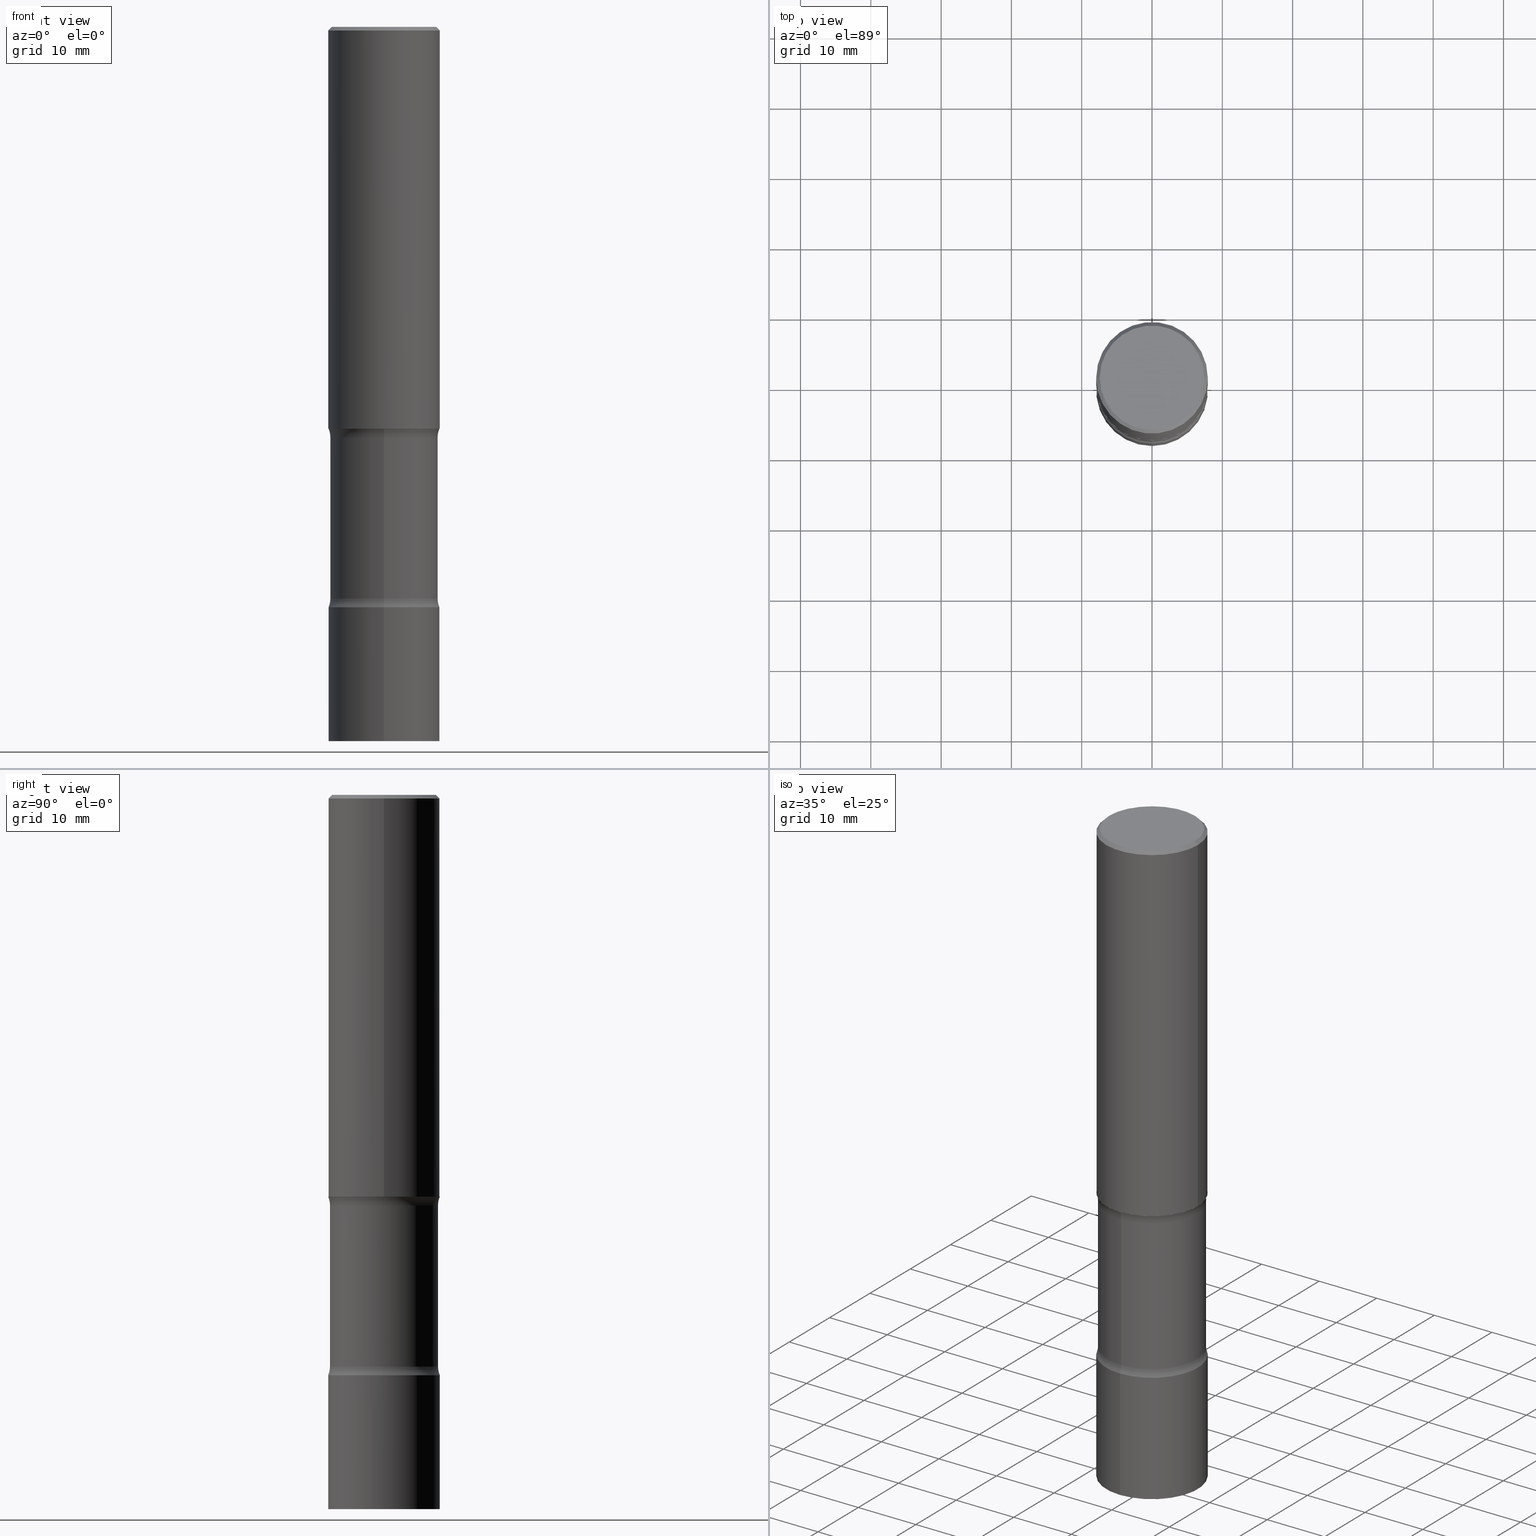
[diagram: canonical four-view strip — front | top / right | iso, engineering-drawing reading convention]
A machine part, canonical four-view strip (front | top / right | iso — engineering-drawing reading convention). The complete STEP part file that produces these views, byte-faithful:
ISO-10303-21;
HEADER;
FILE_DESCRIPTION (( 'STEP AP203' ),
    '1' );
FILE_NAME ('32737.STEP',
    '2024-03-11T13:18:27',
    ( '' ),
    ( '' ),
    'SwSTEP 2.0',
    'SolidWorks 2023',
    '' );
FILE_SCHEMA (( 'CONFIG_CONTROL_DESIGN' ));
ENDSEC;

DATA;
#1 = FACE_OUTER_BOUND ( 'NONE', #186, .T. ) ;
#2 = VERTEX_POINT ( 'NONE', #223 ) ;
#3 = PERSON_AND_ORGANIZATION ( #507, #506 ) ;
#4 = EDGE_CURVE ( 'NONE', #238, #206, #123, .T. ) ;
#5 = CIRCLE ( 'NONE', #179, 0.3125000000000001665 ) ;
#6 = ORIENTED_EDGE ( 'NONE', *, *, #126, .T. ) ;
#7 = EDGE_CURVE ( 'NONE', #459, #174, #246, .T. ) ;
#8 = AXIS2_PLACEMENT_3D ( 'NONE', #351, #243, #288 ) ;
#9 = CARTESIAN_POINT ( 'NONE',  ( -0.3124999999999998890, 2.220446049250312292E-15, -1.537167215704657391E-29 ) ) ;
#10 = FACE_OUTER_BOUND ( 'NONE', #82, .T. ) ;
#11 = DIRECTION ( 'NONE',  ( -6.982962677686265133E-15, -1.000000000000000000, 3.496765431890254947E-15 ) ) ;
#12 = DIRECTION ( 'NONE',  ( 6.982962677686265133E-15, 1.000000000000000000, -3.496765431890258892E-15 ) ) ;
#13 = ORIENTED_EDGE ( 'NONE', *, *, #81, .T. ) ;
#14 = EDGE_LOOP ( 'NONE', ( #345, #315, #500, #342 ) ) ;
#15 = DIRECTION ( 'NONE',  ( 6.860497997771532351E-15, 1.000000000000000000, 0.000000000000000000 ) ) ;
#16 = DIRECTION ( 'NONE',  ( 2.194409616694609199E-29, -3.851012387595239372E-15, -1.000000000000000000 ) ) ;
#17 = DIRECTION ( 'NONE',  ( -2.445033351893169322E-29, 3.492104934173762061E-15, 1.000000000000000000 ) ) ;
#18 = MANIFOLD_SOLID_BREP ( 'Body-Move/Copy2[2]', #350 ) ;
#19 = CC_DESIGN_PERSON_AND_ORGANIZATION_ASSIGNMENT ( #469, #439, ( #482 ) ) ;
#20 = AXIS2_PLACEMENT_3D ( 'NONE', #192, #371, #265 ) ;
#21 = MANIFOLD_SOLID_BREP ( 'Body-Move/Copy2[1]', #224 ) ;
#22 = MANIFOLD_SOLID_BREP ( 'Body-Move/Copy2[4]', #90 ) ;
#23 = EDGE_CURVE ( 'NONE', #105, #443, #83, .T. ) ;
#24 = DIRECTION ( 'NONE',  ( -0.7071067811865472397, 2.468850131082253905E-15, -0.7071067811865477948 ) ) ;
#25 = CARTESIAN_POINT ( 'NONE',  ( -2.182175836776959136E-15, -0.3125000000000001665, 1.091282791929301285E-15 ) ) ;
#26 = EDGE_CURVE ( 'NONE', #287, #233, #5, .T. ) ;
#27 = DIRECTION ( 'NONE',  ( 1.000000000000000000, -6.982962677686265133E-15, 4.876067333457694521E-29 ) ) ;
#28 = AXIS2_PLACEMENT_3D ( 'NONE', #257, #300, #454 ) ;
#29 = DIRECTION ( 'NONE',  ( -2.445468806185136597E-29, 3.491481338843145583E-15, 1.000000000000000000 ) ) ;
#30 = AXIS2_PLACEMENT_3D ( 'NONE', #229, #372, #348 ) ;
#31 = CARTESIAN_POINT ( 'NONE',  ( 9.780133407572677289E-29, -1.396841973669504667E-14, -4.000000000000000000 ) ) ;
#32 = CYLINDRICAL_SURFACE ( 'NONE', #435, 0.3124999999999998890 ) ;
#33 = ADVANCED_FACE ( 'NONE', ( #491 ), #480, .F. ) ;
#34 = FACE_OUTER_BOUND ( 'NONE', #216, .T. ) ;
#35 = DATE_TIME_ROLE ( 'classification_date' ) ;
#36 = ORIENTED_EDGE ( 'NONE', *, *, #286, .F. ) ;
#37 = EDGE_CURVE ( 'NONE', #349, #354, #172, .T. ) ;
#38 = AXIS2_PLACEMENT_3D ( 'NONE', #255, #76, #498 ) ;
#39 = VECTOR ( 'NONE', #299, 39.37007874015748143 ) ;
#40 = SECURITY_CLASSIFICATION ( '', '', #344 ) ;
#41 = DIRECTION ( 'NONE',  ( 2.445468806185136597E-29, -3.491481338843145583E-15, -1.000000000000000000 ) ) ;
#42 = ORIENTED_EDGE ( 'NONE', *, *, #126, .F. ) ;
#43 = COORDINATED_UNIVERSAL_TIME_OFFSET ( 5, 0, .BEHIND. ) ;
#44 = ORIENTED_EDGE ( 'NONE', *, *, #37, .F. ) ;
#45 = APPROVAL_DATE_TIME ( #424, #432 ) ;
#46 = ORIENTED_EDGE ( 'NONE', *, *, #487, .F. ) ;
#47 = FACE_OUTER_BOUND ( 'NONE', #309, .T. ) ;
#48 = VERTEX_POINT ( 'NONE', #414 ) ;
#49 = PERSON_AND_ORGANIZATION ( #507, #506 ) ;
#50 = EDGE_CURVE ( 'NONE', #48, #388, #305, .T. ) ;
#51 = VECTOR ( 'NONE', #332, 39.37007874015748143 ) ;
#52 = LOCAL_TIME ( 9, 18, 27.00000000000000000, #463 ) ;
#53 = CARTESIAN_POINT ( 'NONE',  ( 2.112346210000151452E-15, 0.3024999999999919420, -2.298989794855665014 ) ) ;
#54 = ORIENTED_EDGE ( 'NONE', *, *, #453, .T. ) ;
#55 = ORIENTED_EDGE ( 'NONE', *, *, #81, .F. ) ;
#56 = APPROVAL_STATUS ( 'not_yet_approved' ) ;
#57 = EDGE_LOOP ( 'NONE', ( #339, #91 ) ) ;
#58 = DIRECTION ( 'NONE',  ( 6.982962677686265922E-15, 1.000000000000000000, -3.492104934173762061E-15 ) ) ;
#59 = CARTESIAN_POINT ( 'NONE',  ( 9.780133407572677289E-29, -1.396841973669504667E-14, -4.000000000000000000 ) ) ;
#60 = LOCAL_TIME ( 9, 18, 27.00000000000000000, #43 ) ;
#61 = ORIENTED_EDGE ( 'NONE', *, *, #245, .F. ) ;
#62 = EDGE_CURVE ( 'NONE', #354, #349, #446, .T. ) ;
#63 = DIRECTION ( 'NONE',  ( 2.194409616694609199E-29, -3.851012387595239372E-15, -1.000000000000000000 ) ) ;
#64 = FACE_OUTER_BOUND ( 'NONE', #137, .T. ) ;
#65 = VECTOR ( 'NONE', #260, 39.37007874015748143 ) ;
#66 = DESIGN_CONTEXT ( 'detailed design', #484, 'design' ) ;
#67 = CIRCLE ( 'NONE', #173, 0.3125000000000001665 ) ;
#68 = APPLICATION_CONTEXT ( 'configuration controlled 3d designs of mechanical parts and assemblies' ) ;
#69 = DIRECTION ( 'NONE',  ( 1.000000000000000000, -6.982962677686269077E-15, 0.000000000000000000 ) ) ;
#70 = ADVANCED_FACE ( 'NONE', ( #34 ), #421, .T. ) ;
#71 = DIRECTION ( 'NONE',  ( 2.194409616694608919E-29, -3.851012387595239372E-15, -1.000000000000000000 ) ) ;
#72 = AXIS2_PLACEMENT_3D ( 'NONE', #296, #449, #115 ) ;
#73 = CIRCLE ( 'NONE', #352, 0.3025000000000002687 ) ;
#74 = DIRECTION ( 'NONE',  ( -2.445468806185136597E-29, 3.491481338843145583E-15, 1.000000000000000000 ) ) ;
#75 = ORIENTED_EDGE ( 'NONE', *, *, #62, .T. ) ;
#76 = DIRECTION ( 'NONE',  ( 2.194409616694609199E-29, -3.851012387595239372E-15, -1.000000000000000000 ) ) ;
#77 = APPROVAL ( #247, 'UNSPECIFIED' ) ;
#78 = ORIENTED_EDGE ( 'NONE', *, *, #204, .T. ) ;
#79 = ORIENTED_EDGE ( 'NONE', *, *, #26, .F. ) ;
#80 = PERSON_AND_ORGANIZATION ( #507, #506 ) ;
#81 = EDGE_CURVE ( 'NONE', #2, #357, #210, .T. ) ;
#82 = EDGE_LOOP ( 'NONE', ( #219, #78, #282, #502 ) ) ;
#83 = CIRCLE ( 'NONE', #374, 0.3125000000000000000 ) ;
#84 = CIRCLE ( 'NONE', #307, 0.3024999999999996581 ) ;
#85 = CARTESIAN_POINT ( 'NONE',  ( 2.985216544710934791E-15, 0.4274999999999919420, -2.298989794855665458 ) ) ;
#86 = EDGE_CURVE ( 'NONE', #145, #238, #261, .T. ) ;
#87 = PERSON_AND_ORGANIZATION ( #507, #506 ) ;
#88 = EDGE_LOOP ( 'NONE', ( #196, #291 ) ) ;
#89 = CARTESIAN_POINT ( 'NONE',  ( 2.985216544710957668E-15, 0.4274999999999889444, -3.201010205144338094 ) ) ;
#90 = CLOSED_SHELL ( 'NONE', ( #103, #373, #413, #467, #485, #215, #33, #347 ) ) ;
#91 = ORIENTED_EDGE ( 'NONE', *, *, #258, .F. ) ;
#92 = DIRECTION ( 'NONE',  ( -6.982962677686265133E-15, -1.000000000000000000, 3.492104934173762061E-15 ) ) ;
#93 = DIRECTION ( 'NONE',  ( -2.445033351893169322E-29, 3.492104934173762061E-15, 1.000000000000000000 ) ) ;
#94 = EDGE_CURVE ( 'NONE', #48, #233, #189, .T. ) ;
#95 = CARTESIAN_POINT ( 'NONE',  ( -0.2924999999999997047, 2.077431396611661822E-15, 4.268512490086005323E-18 ) ) ;
#96 = APPROVAL_ROLE ( '' ) ;
#97 = CARTESIAN_POINT ( 'NONE',  ( 9.781875224740546387E-29, -1.396592535537258233E-14, -4.000000000000000000 ) ) ;
#98 = ORIENTED_EDGE ( 'NONE', *, *, #4, .F. ) ;
#99 = AXIS2_PLACEMENT_3D ( 'NONE', #456, #93, #473 ) ;
#100 = CIRCLE ( 'NONE', #365, 0.1249999999999999584 ) ;
#101 = PRODUCT_RELATED_PRODUCT_CATEGORY ( 'detail', '', ( #482 ) ) ;
#102 = EDGE_CURVE ( 'NONE', #145, #459, #327, .T. ) ;
#103 = ADVANCED_FACE ( 'NONE', ( #121 ), #110, .T. ) ;
#104 = DIRECTION ( 'NONE',  ( -6.982962677686267499E-15, -1.000000000000000000, 0.000000000000000000 ) ) ;
#105 = VERTEX_POINT ( 'NONE', #266 ) ;
#106 = VERTEX_POINT ( 'NONE', #496 ) ;
#107 = DIRECTION ( 'NONE',  ( -2.438088387897960049E-29, 3.491481338843145188E-15, 1.000000000000000000 ) ) ;
#108 = PLANE ( 'NONE',  #217 ) ;
#109 = VERTEX_POINT ( 'NONE', #452 ) ;
#110 = CYLINDRICAL_SURFACE ( 'NONE', #248, 0.3024999999999999356 ) ;
#111 = CARTESIAN_POINT ( 'NONE',  ( 0.000000000000000000, 0.000000000000000000, 0.000000000000000000 ) ) ;
#112 = DIRECTION ( 'NONE',  ( -1.000000000000000000, 6.982962677686265922E-15, -4.876176775795935793E-29 ) ) ;
#113 = VECTOR ( 'NONE', #63, 39.37007874015748143 ) ;
#114 = APPROVAL_PERSON_ORGANIZATION ( #49, #432, #96 ) ;
#115 = DIRECTION ( 'NONE',  ( 1.000000000000000000, -6.982962677686265133E-15, 4.876067333457694521E-29 ) ) ;
#116 = CYLINDRICAL_SURFACE ( 'NONE', #30, 0.3024999999999999356 ) ;
#117 = COORDINATED_UNIVERSAL_TIME_OFFSET ( 5, 0, .BEHIND. ) ;
#118 = LENGTH_MEASURE_WITH_UNIT ( LENGTH_MEASURE( 0.02539999999999999897 ), #191 );
#119 = CARTESIAN_POINT ( 'NONE',  ( 5.502304813916558464E-29, -7.855833012397078448E-15, -2.250000000000000444 ) ) ;
#120 = CARTESIAN_POINT ( 'NONE',  ( 5.502304813916558464E-29, -7.855833012397078448E-15, -2.250000000000000444 ) ) ;
#121 = FACE_OUTER_BOUND ( 'NONE', #505, .T. ) ;
#122 = FACE_OUTER_BOUND ( 'NONE', #325, .T. ) ;
#123 = LINE ( 'NONE', #494, #65 ) ;
#124 = DIRECTION ( 'NONE',  ( -1.000000000000000000, 6.982962677686266711E-15, 0.000000000000000000 ) ) ;
#125 = VECTOR ( 'NONE', #501, 39.37007874015748143 ) ;
#126 = EDGE_CURVE ( 'NONE', #106, #206, #504, .T. ) ;
#127 = DIRECTION ( 'NONE',  ( -6.982962677686266711E-15, -1.000000000000000000, 0.000000000000000000 ) ) ;
#128 = ORIENTED_EDGE ( 'NONE', *, *, #318, .F. ) ;
#129 = EDGE_CURVE ( 'NONE', #233, #287, #200, .T. ) ;
#130 = PERSON_AND_ORGANIZATION_ROLE ( 'classification_officer' ) ;
#131 = ORIENTED_EDGE ( 'NONE', *, *, #23, .F. ) ;
#132 = AXIS2_PLACEMENT_3D ( 'NONE', #426, #427, #458 ) ;
#133 = ADVANCED_BREP_SHAPE_REPRESENTATION ( '32737', ( #21, #18, #22, #201 ), #278 ) ;
#134 = DIRECTION ( 'NONE',  ( 6.982962677686266711E-15, 1.000000000000000000, -3.851012387595239372E-15 ) ) ;
#135 = CALENDAR_DATE ( 2024, 11, 3 ) ;
#136 = ORIENTED_EDGE ( 'NONE', *, *, #166, .F. ) ;
#137 = EDGE_LOOP ( 'NONE', ( #128, #131 ) ) ;
#138 = ADVANCED_FACE ( 'NONE', ( #1 ), #32, .T. ) ;
#139 = CARTESIAN_POINT ( 'NONE',  ( 0.000000000000000000, 0.000000000000000000, 0.000000000000000000 ) ) ;
#140 = VECTOR ( 'NONE', #472, 39.37007874015748143 ) ;
#141 = CC_DESIGN_SECURITY_CLASSIFICATION ( #40, ( #343 ) ) ;
#142 = DIRECTION ( 'NONE',  ( 2.194409616694609199E-29, -3.851012387595239372E-15, -1.000000000000000000 ) ) ;
#143 = APPROVAL_STATUS ( 'not_yet_approved' ) ;
#144 = PLANE ( 'NONE',  #297 ) ;
#145 = VERTEX_POINT ( 'NONE', #262 ) ;
#146 = ORIENTED_EDGE ( 'NONE', *, *, #487, .T. ) ;
#147 = FACE_OUTER_BOUND ( 'NONE', #442, .T. ) ;
#148 = DIRECTION ( 'NONE',  ( 2.194409616694609199E-29, -3.851012387595239372E-15, -1.000000000000000000 ) ) ;
#149 = ORIENTED_EDGE ( 'NONE', *, *, #508, .T. ) ;
#150 = ORIENTED_EDGE ( 'NONE', *, *, #508, .F. ) ;
#151 = AXIS2_PLACEMENT_3D ( 'NONE', #31, #160, #337 ) ;
#152 = AXIS2_PLACEMENT_3D ( 'NONE', #353, #436, #241 ) ;
#153 = DIRECTION ( 'NONE',  ( 1.000000000000000000, -6.982962677686269077E-15, 0.000000000000000000 ) ) ;
#154 = CARTESIAN_POINT ( 'NONE',  ( 0.3124999999999996669, -2.213735251080464545E-15, -0.02000000000000000042 ) ) ;
#155 = LINE ( 'NONE', #294, #240 ) ;
#156 = DIRECTION ( 'NONE',  ( 2.445033351893168762E-29, -3.492104934173762061E-15, -1.000000000000000000 ) ) ;
#157 = AXIS2_PLACEMENT_3D ( 'NONE', #220, #239, #324 ) ;
#158 = APPROVAL_DATE_TIME ( #333, #416 ) ;
#159 = CARTESIAN_POINT ( 'NONE',  ( 0.3124999999999998890, -2.182175836776957558E-15, 1.523805242436229235E-29 ) ) ;
#160 = DIRECTION ( 'NONE',  ( -2.445033351893169322E-29, 3.492104934173762061E-15, 1.000000000000000000 ) ) ;
#161 = PRODUCT_DEFINITION ( 'UNKNOWN', '', #343, #66 ) ;
#162 = DIRECTION ( 'NONE',  ( -1.000000000000000000, 6.982962677686265922E-15, -4.883557194083112340E-29 ) ) ;
#163 = CC_DESIGN_PERSON_AND_ORGANIZATION_ASSIGNMENT ( #3, #431, ( #343 ) ) ;
#164 = CARTESIAN_POINT ( 'NONE',  ( 2.112346210000175513E-15, 0.3024999999999891109, -3.201010205144337206 ) ) ;
#165 = ORIENTED_EDGE ( 'NONE', *, *, #129, .T. ) ;
#166 = EDGE_CURVE ( 'NONE', #238, #174, #448, .T. ) ;
#167 = CIRCLE ( 'NONE', #193, 0.1249999999999999584 ) ;
#168 = CARTESIAN_POINT ( 'NONE',  ( 7.838854716701635456E-29, -1.116068072920981579E-14, -3.201010205144336318 ) ) ;
#169 = ORIENTED_EDGE ( 'NONE', *, *, #204, .F. ) ;
#170 = ORIENTED_EDGE ( 'NONE', *, *, #464, .T. ) ;
#171 = ORIENTED_EDGE ( 'NONE', *, *, #62, .F. ) ;
#172 = CIRCLE ( 'NONE', #72, 0.2924999999999997047 ) ;
#173 = AXIS2_PLACEMENT_3D ( 'NONE', #59, #17, #11 ) ;
#174 = VERTEX_POINT ( 'NONE', #303 ) ;
#175 = CALENDAR_DATE ( 2024, 11, 3 ) ;
#176 = ORIENTED_EDGE ( 'NONE', *, *, #453, .F. ) ;
#177 = CC_DESIGN_PERSON_AND_ORGANIZATION_ASSIGNMENT ( #87, #130, ( #40 ) ) ;
#178 = DIRECTION ( 'NONE',  ( 1.000000000000000000, -6.860497997771530774E-15, 4.836395894143659074E-29 ) ) ;
#179 = AXIS2_PLACEMENT_3D ( 'NONE', #410, #418, #334 ) ;
#180 = AXIS2_PLACEMENT_3D ( 'NONE', #466, #218, #279 ) ;
#181 = CARTESIAN_POINT ( 'NONE',  ( 7.827970604960759960E-29, -1.117626739670792029E-14, -3.201010205144336318 ) ) ;
#182 = CARTESIAN_POINT ( 'NONE',  ( 2.220446049250412083E-15, 0.3124999999999887867, -3.250000000000001332 ) ) ;
#183 = CARTESIAN_POINT ( 'NONE',  ( 5.860562736318363041E-29, -7.685398967721348448E-15, -2.298989794855663682 ) ) ;
#184 = CARTESIAN_POINT ( 'NONE',  ( 5.751948776958191309E-29, -7.498328648469489101E-15, -2.250000000000000444 ) ) ;
#185 = CARTESIAN_POINT ( 'NONE',  ( 5.859452453909356080E-29, -7.686988955324398625E-15, -2.298989794855664126 ) ) ;
#186 = EDGE_LOOP ( 'NONE', ( #267, #320, #311, #55 ) ) ;
#187 = CARTESIAN_POINT ( 'NONE',  ( 4.890937612370273159E-31, -6.982962677686291609E-17, -0.02000000000000000042 ) ) ;
#188 = CIRCLE ( 'NONE', #157, 0.3125000000000001665 ) ;
#189 = LINE ( 'NONE', #25, #51 ) ;
#190 = FACE_OUTER_BOUND ( 'NONE', #385, .T. ) ;
#191 =( LENGTH_UNIT ( ) NAMED_UNIT ( * ) SI_UNIT ( $, .METRE. ) );
#192 = CARTESIAN_POINT ( 'NONE',  ( 7.827970604960759960E-29, -1.117626739670792029E-14, -3.201010205144336318 ) ) ;
#193 = AXIS2_PLACEMENT_3D ( 'NONE', #355, #178, #15 ) ;
#194 = DIRECTION ( 'NONE',  ( 1.000000000000000000, -6.982962677686267499E-15, 0.000000000000000000 ) ) ;
#195 = ADVANCED_FACE ( 'NONE', ( #202 ), #231, .T. ) ;
#196 = ORIENTED_EDGE ( 'NONE', *, *, #437, .T. ) ;
#197 = DIRECTION ( 'NONE',  ( -2.445468806185136597E-29, 3.491481338843145583E-15, 1.000000000000000000 ) ) ;
#198 = ORIENTED_EDGE ( 'NONE', *, *, #486, .F. ) ;
#199 = ORIENTED_EDGE ( 'NONE', *, *, #380, .T. ) ;
#200 = CIRCLE ( 'NONE', #132, 0.3125000000000001665 ) ;
#201 = AXIS2_PLACEMENT_3D ( 'NONE', #363, #401, #474 ) ;
#202 = FACE_OUTER_BOUND ( 'NONE', #323, .T. ) ;
#203 = ORIENTED_EDGE ( 'NONE', *, *, #464, .F. ) ;
#204 = EDGE_CURVE ( 'NONE', #388, #287, #420, .T. ) ;
#205 = ORIENTED_EDGE ( 'NONE', *, *, #318, .T. ) ;
#206 = VERTEX_POINT ( 'NONE', #164 ) ;
#207 = ADVANCED_FACE ( 'NONE', ( #306 ), #269, .T. ) ;
#208 = CARTESIAN_POINT ( 'NONE',  ( 0.2924999999999997047, -2.110215457714317564E-15, 4.268512490114932791E-18 ) ) ;
#209 = ORIENTED_EDGE ( 'NONE', *, *, #102, .T. ) ;
#210 = CIRCLE ( 'NONE', #340, 0.3124999999999996669 ) ;
#211 = PERSON_AND_ORGANIZATION_ROLE ( 'creator' ) ;
#212 = AXIS2_PLACEMENT_3D ( 'NONE', #346, #41, #124 ) ;
#213 = FACE_OUTER_BOUND ( 'NONE', #14, .T. ) ;
#214 = CC_DESIGN_DATE_AND_TIME_ASSIGNMENT ( #283, #35, ( #40 ) ) ;
#215 = ADVANCED_FACE ( 'NONE', ( #387 ), #393, .F. ) ;
#216 = EDGE_LOOP ( 'NONE', ( #205, #199, #46, #476 ) ) ;
#217 = AXIS2_PLACEMENT_3D ( 'NONE', #447, #71, #370 ) ;
#218 = DIRECTION ( 'NONE',  ( -2.194409616694608919E-29, 3.851012387595239372E-15, 1.000000000000000000 ) ) ;
#219 = ORIENTED_EDGE ( 'NONE', *, *, #50, .T. ) ;
#220 = CARTESIAN_POINT ( 'NONE',  ( 7.946358393652800227E-29, -1.134934103606472690E-14, -3.250000000000000000 ) ) ;
#221 = DIRECTION ( 'NONE',  ( -2.445468806185136597E-29, 3.491481338843145583E-15, 1.000000000000000000 ) ) ;
#222 = LINE ( 'NONE', #154, #455 ) ;
#223 = CARTESIAN_POINT ( 'NONE',  ( -0.3124999999999996669, 2.112346210000093077E-15, -0.02000000000000000042 ) ) ;
#224 = CLOSED_SHELL ( 'NONE', ( #392, #207, #310, #430 ) ) ;
#225 = FACE_OUTER_BOUND ( 'NONE', #406, .T. ) ;
#226 = CC_DESIGN_APPROVAL ( #77, ( #40 ) ) ;
#227 = DIRECTION ( 'NONE',  ( 1.000000000000000000, -6.860497997771530774E-15, 4.836395894143659074E-29 ) ) ;
#228 = DIRECTION ( 'NONE',  ( 1.000000000000000000, -6.982962677686266711E-15, 4.876176775795935232E-29 ) ) ;
#229 = CARTESIAN_POINT ( 'NONE',  ( 9.592165606173758317E-29, -1.423760032676115406E-14, -4.000000000000000000 ) ) ;
#230 = VERTEX_POINT ( 'NONE', #390 ) ;
#231 = CONICAL_SURFACE ( 'NONE', #212, 0.3124999999999996669, 0.7853981633974479459 ) ;
#232 = APPROVAL_PERSON_ORGANIZATION ( #396, #416, #358 ) ;
#233 = VERTEX_POINT ( 'NONE', #362 ) ;
#234 = AXIS2_PLACEMENT_3D ( 'NONE', #407, #156, #366 ) ;
#235 = APPROVAL_DATE_TIME ( #301, #77 ) ;
#236 = LINE ( 'NONE', #9, #140 ) ;
#237 = CC_DESIGN_DATE_AND_TIME_ASSIGNMENT ( #322, #272, ( #161 ) ) ;
#238 = VERTEX_POINT ( 'NONE', #53 ) ;
#239 = DIRECTION ( 'NONE',  ( 2.194409616694609199E-29, -3.851012387595239372E-15, -1.000000000000000000 ) ) ;
#240 = VECTOR ( 'NONE', #24, 39.37007874015748143 ) ;
#241 = DIRECTION ( 'NONE',  ( 6.982962677686265922E-15, 1.000000000000000000, -3.851012387595239372E-15 ) ) ;
#242 = APPLICATION_PROTOCOL_DEFINITION ( 'international standard', 'config_control_design', 1994, #484 ) ;
#243 = DIRECTION ( 'NONE',  ( 2.445468806185136597E-29, -3.491481338843145583E-15, -1.000000000000000000 ) ) ;
#244 = CARTESIAN_POINT ( 'NONE',  ( 0.3125000000000000000, -1.003800884917403837E-14, -2.250000000000000444 ) ) ;
#245 = EDGE_CURVE ( 'NONE', #109, #106, #167, .T. ) ;
#246 = CIRCLE ( 'NONE', #28, 0.3124999999999998335 ) ;
#247 = APPROVAL_STATUS ( 'not_yet_approved' ) ;
#248 = AXIS2_PLACEMENT_3D ( 'NONE', #251, #497, #415 ) ;
#249 = ORIENTED_EDGE ( 'NONE', *, *, #281, .F. ) ;
#250 = ORIENTED_EDGE ( 'NONE', *, *, #7, .F. ) ;
#251 = CARTESIAN_POINT ( 'NONE',  ( 9.592165606173758317E-29, -1.423760032676115406E-14, -4.000000000000000000 ) ) ;
#252 = DIRECTION ( 'NONE',  ( -2.445468806185136597E-29, 3.491481338843145583E-15, 1.000000000000000000 ) ) ;
#253 = TOROIDAL_SURFACE ( 'NONE', #152, 0.4274999999999996581, 0.1250000000000000000 ) ;
#254 = COORDINATED_UNIVERSAL_TIME_OFFSET ( 5, 0, .BEHIND. ) ;
#255 = CARTESIAN_POINT ( 'NONE',  ( 5.859452453909356080E-29, -7.686988955324398625E-15, -2.298989794855664126 ) ) ;
#256 = CALENDAR_DATE ( 2024, 11, 3 ) ;
#257 = CARTESIAN_POINT ( 'NONE',  ( 5.751948776958191309E-29, -7.498328648469489101E-15, -2.250000000000000444 ) ) ;
#258 = EDGE_CURVE ( 'NONE', #388, #48, #67, .T. ) ;
#259 = LINE ( 'NONE', #444, #113 ) ;
#260 = DIRECTION ( 'NONE',  ( 2.194409616694609199E-29, -3.851012387595239372E-15, -1.000000000000000000 ) ) ;
#261 = CIRCLE ( 'NONE', #38, 0.3024999999999996581 ) ;
#262 = CARTESIAN_POINT ( 'NONE',  ( -2.109603134314685008E-15, -0.3025000000000073186, -2.298989794855662794 ) ) ;
#263 = AXIS2_PLACEMENT_3D ( 'NONE', #295, #292, #112 ) ;
#264 = LOCAL_TIME ( 9, 18, 27.00000000000000000, #117 ) ;
#265 = DIRECTION ( 'NONE',  ( 6.982962677686266711E-15, 1.000000000000000000, -3.851012387595239372E-15 ) ) ;
#266 = CARTESIAN_POINT ( 'NONE',  ( -0.3125000000000000000, -1.742385270336656017E-15, -2.250000000000000444 ) ) ;
#267 = ORIENTED_EDGE ( 'NONE', *, *, #380, .F. ) ;
#268 = APPROVAL_ROLE ( '' ) ;
#269 = CYLINDRICAL_SURFACE ( 'NONE', #99, 0.3125000000000001665 ) ;
#270 = DIRECTION ( 'NONE',  ( 6.982962677686265922E-15, 1.000000000000000000, -3.612360983357700469E-15 ) ) ;
#271 = EDGE_LOOP ( 'NONE', ( #273, #209, #379, #136 ) ) ;
#272 = DATE_TIME_ROLE ( 'creation_date' ) ;
#273 = ORIENTED_EDGE ( 'NONE', *, *, #86, .F. ) ;
#274 = DIRECTION ( 'NONE',  ( -2.445033351893169322E-29, 3.492104934173762061E-15, 1.000000000000000000 ) ) ;
#275 = DIMENSIONAL_EXPONENTS ( 1.000000000000000000, 0.000000000000000000, 0.000000000000000000, 0.000000000000000000, 0.000000000000000000, 0.000000000000000000, 0.000000000000000000 ) ;
#276 = TOROIDAL_SURFACE ( 'NONE', #341, 0.4275000000000001577, 0.1249999999999999861 ) ;
#277 = CARTESIAN_POINT ( 'NONE',  ( 7.838854716701635456E-29, -1.116068072920981579E-14, -3.201010205144336318 ) ) ;
#278 =( GEOMETRIC_REPRESENTATION_CONTEXT ( 3 ) GLOBAL_UNCERTAINTY_ASSIGNED_CONTEXT ( ( #293 ) ) GLOBAL_UNIT_ASSIGNED_CONTEXT ( ( #434, #361, #477 ) ) REPRESENTATION_CONTEXT ( 'NONE', 'WORKASPACE' ) );
#279 = DIRECTION ( 'NONE',  ( -6.982962677686265922E-15, -1.000000000000000000, 3.851012387595239372E-15 ) ) ;
#280 = MECHANICAL_CONTEXT ( 'NONE', #68, 'mechanical' ) ;
#281 = EDGE_CURVE ( 'NONE', #174, #459, #481, .T. ) ;
#282 = ORIENTED_EDGE ( 'NONE', *, *, #129, .F. ) ;
#283 = DATE_AND_TIME ( #135, #60 ) ;
#284 = CARTESIAN_POINT ( 'NONE',  ( -2.143905624303543265E-15, -0.3125000000000072720, -2.249999999999999112 ) ) ;
#285 = ORIENTED_EDGE ( 'NONE', *, *, #486, .T. ) ;
#286 = EDGE_CURVE ( 'NONE', #109, #230, #389, .T. ) ;
#287 = VERTEX_POINT ( 'NONE', #182 ) ;
#288 = DIRECTION ( 'NONE',  ( -1.000000000000000000, 6.982962677686266711E-15, 0.000000000000000000 ) ) ;
#289 = LINE ( 'NONE', #159, #39 ) ;
#290 = AXIS2_PLACEMENT_3D ( 'NONE', #183, #359, #475 ) ;
#291 = ORIENTED_EDGE ( 'NONE', *, *, #286, .T. ) ;
#292 = DIRECTION ( 'NONE',  ( 2.438088387897960049E-29, -3.491481338843145188E-15, -1.000000000000000000 ) ) ;
#293 = UNCERTAINTY_MEASURE_WITH_UNIT (LENGTH_MEASURE( 1.000000000000000082E-05 ), #434, 'distance_accuracy_value', 'NONE');
#294 = CARTESIAN_POINT ( 'NONE',  ( -0.3124999999999996669, 2.112346210000093077E-15, -0.02000000000000000042 ) ) ;
#295 = CARTESIAN_POINT ( 'NONE',  ( 2.042516583223230567E-15, 0.2924999999999997047, -1.019124035366568817E-15 ) ) ;
#296 = CARTESIAN_POINT ( 'NONE',  ( -1.043851414335219820E-46, 1.490343170380447200E-32, 4.268512490100411279E-18 ) ) ;
#297 = AXIS2_PLACEMENT_3D ( 'NONE', #97, #402, #58 ) ;
#298 = PERSON_AND_ORGANIZATION ( #507, #506 ) ;
#299 = DIRECTION ( 'NONE',  ( -2.445468806185136877E-29, 3.491481338843145188E-15, 1.000000000000000000 ) ) ;
#300 = DIRECTION ( 'NONE',  ( 2.194409616694609199E-29, -3.851012387595239372E-15, -1.000000000000000000 ) ) ;
#301 = DATE_AND_TIME ( #395, #329 ) ;
#302 = ADVANCED_FACE ( 'NONE', ( #64 ), #411, .F. ) ;
#303 = CARTESIAN_POINT ( 'NONE',  ( 2.182175836777013567E-15, 0.3124999999999922284, -2.250000000000001332 ) ) ;
#304 = CARTESIAN_POINT ( 'NONE',  ( -1.043851414335219820E-46, 1.490343170380447200E-32, 4.268512490100411279E-18 ) ) ;
#305 = CIRCLE ( 'NONE', #151, 0.3125000000000001665 ) ;
#306 = FACE_OUTER_BOUND ( 'NONE', #438, .T. ) ;
#307 = AXIS2_PLACEMENT_3D ( 'NONE', #185, #148, #399 ) ;
#308 = ORIENTED_EDGE ( 'NONE', *, *, #445, .T. ) ;
#309 = EDGE_LOOP ( 'NONE', ( #36, #423, #6, #176 ) ) ;
#310 = ADVANCED_FACE ( 'NONE', ( #225 ), #479, .F. ) ;
#311 = ORIENTED_EDGE ( 'NONE', *, *, #478, .T. ) ;
#312 = AXIS2_PLACEMENT_3D ( 'NONE', #168, #422, #270 ) ;
#313 = CONICAL_SURFACE ( 'NONE', #8, 0.3124999999999996669, 0.7853981633974479459 ) ;
#314 = CYLINDRICAL_SURFACE ( 'NONE', #328, 0.3125000000000001665 ) ;
#315 = ORIENTED_EDGE ( 'NONE', *, *, #445, .F. ) ;
#316 = CARTESIAN_POINT ( 'NONE',  ( 7.946358393652800227E-29, -1.134934103606472690E-14, -3.250000000000000000 ) ) ;
#317 = AXIS2_PLACEMENT_3D ( 'NONE', #316, #142, #398 ) ;
#318 = EDGE_CURVE ( 'NONE', #443, #105, #462, .T. ) ;
#319 = CC_DESIGN_APPROVAL ( #432, ( #343 ) ) ;
#320 = ORIENTED_EDGE ( 'NONE', *, *, #23, .T. ) ;
#321 = DIRECTION ( 'NONE',  ( 2.194409616694609199E-29, -3.851012387595239372E-15, -1.000000000000000000 ) ) ;
#322 = DATE_AND_TIME ( #256, #264 ) ;
#323 = EDGE_LOOP ( 'NONE', ( #394, #44, #149, #13 ) ) ;
#324 = DIRECTION ( 'NONE',  ( 6.982962677686265133E-15, 1.000000000000000000, -3.496765431890254947E-15 ) ) ;
#325 = EDGE_LOOP ( 'NONE', ( #249, #250 ) ) ;
#326 = CARTESIAN_POINT ( 'NONE',  ( 5.502304813916558464E-29, -7.855833012397078448E-15, -2.250000000000000444 ) ) ;
#327 = CIRCLE ( 'NONE', #382, 0.1250000000000000000 ) ;
#328 = AXIS2_PLACEMENT_3D ( 'NONE', #139, #274, #92 ) ;
#329 = LOCAL_TIME ( 9, 18, 27.00000000000000000, #367 ) ;
#330 = APPLICATION_PROTOCOL_DEFINITION ( 'international standard', 'config_control_design', 1994, #68 ) ;
#331 = ADVANCED_FACE ( 'NONE', ( #190 ), #490, .F. ) ;
#332 = DIRECTION ( 'NONE',  ( -2.445033351893169042E-29, 3.492104934173762061E-15, 1.000000000000000000 ) ) ;
#333 = DATE_AND_TIME ( #409, #493 ) ;
#334 = DIRECTION ( 'NONE',  ( -6.982962677686265133E-15, -1.000000000000000000, 3.496765431890254947E-15 ) ) ;
#335 = AXIS2_PLACEMENT_3D ( 'NONE', #85, #162, #127 ) ;
#336 = CARTESIAN_POINT ( 'NONE',  ( 0.000000000000000000, 0.000000000000000000, 0.000000000000000000 ) ) ;
#337 = DIRECTION ( 'NONE',  ( -6.982962677686265133E-15, -1.000000000000000000, 3.496765431890254947E-15 ) ) ;
#338 = DIRECTION ( 'NONE',  ( -2.445468806185136597E-29, 3.491481338843145583E-15, 1.000000000000000000 ) ) ;
#339 = ORIENTED_EDGE ( 'NONE', *, *, #50, .F. ) ;
#340 = AXIS2_PLACEMENT_3D ( 'NONE', #368, #252, #194 ) ;
#341 = AXIS2_PLACEMENT_3D ( 'NONE', #181, #321, #134 ) ;
#342 = ORIENTED_EDGE ( 'NONE', *, *, #281, .T. ) ;
#343 = PRODUCT_DEFINITION_FORMATION_WITH_SPECIFIED_SOURCE ( 'ANY', '', #482, .NOT_KNOWN. ) ;
#344 = SECURITY_CLASSIFICATION_LEVEL ( 'unclassified' ) ;
#345 = ORIENTED_EDGE ( 'NONE', *, *, #102, .F. ) ;
#346 = CARTESIAN_POINT ( 'NONE',  ( 4.890937612370273159E-31, -6.982962677686291609E-17, -0.02000000000000000042 ) ) ;
#347 = ADVANCED_FACE ( 'NONE', ( #369 ), #116, .T. ) ;
#348 = DIRECTION ( 'NONE',  ( 6.982962677686265922E-15, 1.000000000000000000, -3.612360983357704414E-15 ) ) ;
#349 = VERTEX_POINT ( 'NONE', #95 ) ;
#350 = CLOSED_SHELL ( 'NONE', ( #70, #403, #195, #331, #302, #138 ) ) ;
#351 = CARTESIAN_POINT ( 'NONE',  ( 4.890937612370273159E-31, -6.982962677686291609E-17, -0.02000000000000000042 ) ) ;
#352 = AXIS2_PLACEMENT_3D ( 'NONE', #277, #16, #441 ) ;
#353 = CARTESIAN_POINT ( 'NONE',  ( 5.860562736318363041E-29, -7.685398967721348448E-15, -2.298989794855663682 ) ) ;
#354 = VERTEX_POINT ( 'NONE', #208 ) ;
#355 = CARTESIAN_POINT ( 'NONE',  ( -2.932862894047252024E-15, -0.4275000000000113709, -3.201010205144334542 ) ) ;
#356 = CC_DESIGN_PERSON_AND_ORGANIZATION_ASSIGNMENT ( #460, #211, ( #343 ) ) ;
#357 = VERTEX_POINT ( 'NONE', #400 ) ;
#358 = APPROVAL_ROLE ( '' ) ;
#359 = DIRECTION ( 'NONE',  ( 2.194409616694609199E-29, -3.851012387595239372E-15, -1.000000000000000000 ) ) ;
#360 = AXIS2_PLACEMENT_3D ( 'NONE', #184, #440, #12 ) ;
#361 =( NAMED_UNIT ( * ) PLANE_ANGLE_UNIT ( ) SI_UNIT ( $, .RADIAN. ) );
#362 = CARTESIAN_POINT ( 'NONE',  ( -2.182175836776879461E-15, -0.3125000000000114908, -3.249999999999999112 ) ) ;
#363 = CARTESIAN_POINT ( 'NONE',  ( 0.000000000000000000, 0.000000000000000000, 0.000000000000000000 ) ) ;
#364 = DIRECTION ( 'NONE',  ( 1.000000000000000000, -6.982962677686265922E-15, 4.876176775795935793E-29 ) ) ;
#365 = AXIS2_PLACEMENT_3D ( 'NONE', #89, #468, #104 ) ;
#366 = DIRECTION ( 'NONE',  ( 6.982962677686265922E-15, 1.000000000000000000, -3.492104934173762061E-15 ) ) ;
#367 = COORDINATED_UNIVERSAL_TIME_OFFSET ( 5, 0, .BEHIND. ) ;
#368 = CARTESIAN_POINT ( 'NONE',  ( 4.890937612370273159E-31, -6.982962677686291609E-17, -0.02000000000000000042 ) ) ;
#369 = FACE_OUTER_BOUND ( 'NONE', #433, .T. ) ;
#370 = DIRECTION ( 'NONE',  ( 6.982962677686265922E-15, 1.000000000000000000, -3.851012387595239372E-15 ) ) ;
#371 = DIRECTION ( 'NONE',  ( 2.194409616694609199E-29, -3.851012387595239372E-15, -1.000000000000000000 ) ) ;
#372 = DIRECTION ( 'NONE',  ( 2.194409616694609199E-29, -3.851012387595239372E-15, -1.000000000000000000 ) ) ;
#373 = ADVANCED_FACE ( 'NONE', ( #47 ), #276, .F. ) ;
#374 = AXIS2_PLACEMENT_3D ( 'NONE', #119, #489, #69 ) ;
#375 = AXIS2_PLACEMENT_3D ( 'NONE', #120, #221, #153 ) ;
#376 = CC_DESIGN_APPROVAL ( #416, ( #161 ) ) ;
#377 = CC_DESIGN_PERSON_AND_ORGANIZATION_ASSIGNMENT ( #298, #451, ( #161 ) ) ;
#378 = CARTESIAN_POINT ( 'NONE',  ( 2.220446049250313475E-15, 0.3125000000000001665, -1.091282791929301285E-15 ) ) ;
#379 = ORIENTED_EDGE ( 'NONE', *, *, #7, .T. ) ;
#380 = EDGE_CURVE ( 'NONE', #105, #2, #236, .T. ) ;
#381 = ORIENTED_EDGE ( 'NONE', *, *, #437, .F. ) ;
#382 = AXIS2_PLACEMENT_3D ( 'NONE', #412, #227, #391 ) ;
#383 = DIRECTION ( 'NONE',  ( 1.000000000000000000, -6.982962677686266711E-15, 4.876176775795935232E-29 ) ) ;
#384 = ORIENTED_EDGE ( 'NONE', *, *, #258, .T. ) ;
#385 = EDGE_LOOP ( 'NONE', ( #405, #75 ) ) ;
#386 = CARTESIAN_POINT ( 'NONE',  ( 2.220446049250402617E-15, 0.3124999999999861222, -4.000000000000000888 ) ) ;
#387 = FACE_OUTER_BOUND ( 'NONE', #88, .T. ) ;
#388 = VERTEX_POINT ( 'NONE', #386 ) ;
#389 = CIRCLE ( 'NONE', #317, 0.3125000000000001665 ) ;
#390 = CARTESIAN_POINT ( 'NONE',  ( 2.182175836777038811E-15, 0.3124999999999887867, -3.250000000000001332 ) ) ;
#391 = DIRECTION ( 'NONE',  ( 6.860497997771529985E-15, 1.000000000000000000, 0.000000000000000000 ) ) ;
#392 = ADVANCED_FACE ( 'NONE', ( #10 ), #314, .T. ) ;
#393 = PLANE ( 'NONE',  #180 ) ;
#394 = ORIENTED_EDGE ( 'NONE', *, *, #495, .F. ) ;
#395 = CALENDAR_DATE ( 2024, 11, 3 ) ;
#396 = PERSON_AND_ORGANIZATION ( #507, #506 ) ;
#397 = FACE_OUTER_BOUND ( 'NONE', #271, .T. ) ;
#398 = DIRECTION ( 'NONE',  ( 6.982962677686265133E-15, 1.000000000000000000, -3.496765431890254947E-15 ) ) ;
#399 = DIRECTION ( 'NONE',  ( 6.982962677686264344E-15, 1.000000000000000000, -3.612360983357707569E-15 ) ) ;
#400 = CARTESIAN_POINT ( 'NONE',  ( 0.3124999999999996669, -2.213735251080464545E-15, -0.02000000000000000042 ) ) ;
#401 = DIRECTION ( 'NONE',  ( 0.000000000000000000, 0.000000000000000000, 1.000000000000000000 ) ) ;
#402 = DIRECTION ( 'NONE',  ( 2.445033351893168762E-29, -3.492104934173762061E-15, -1.000000000000000000 ) ) ;
#403 = ADVANCED_FACE ( 'NONE', ( #147 ), #313, .T. ) ;
#404 = ORIENTED_EDGE ( 'NONE', *, *, #26, .T. ) ;
#405 = ORIENTED_EDGE ( 'NONE', *, *, #37, .T. ) ;
#406 = EDGE_LOOP ( 'NONE', ( #165, #404 ) ) ;
#407 = CARTESIAN_POINT ( 'NONE',  ( 7.947773620101693940E-29, -1.134731435124022443E-14, -3.250000000000000000 ) ) ;
#408 = PRODUCT_DEFINITION_SHAPE ( 'NONE', 'NONE',  #161 ) ;
#409 = CALENDAR_DATE ( 2024, 11, 3 ) ;
#410 = CARTESIAN_POINT ( 'NONE',  ( 7.946358393652800227E-29, -1.134934103606472690E-14, -3.250000000000000000 ) ) ;
#411 = PLANE ( 'NONE',  #428 ) ;
#412 = CARTESIAN_POINT ( 'NONE',  ( -2.932862894047268196E-15, -0.4275000000000073741, -2.298989794855662350 ) ) ;
#413 = ADVANCED_FACE ( 'NONE', ( #397 ), #470, .F. ) ;
#414 = CARTESIAN_POINT ( 'NONE',  ( -2.182175836776861317E-15, -0.3125000000000141553, -3.999999999999998668 ) ) ;
#415 = DIRECTION ( 'NONE',  ( 6.982962677686265922E-15, 1.000000000000000000, -3.612360983357704414E-15 ) ) ;
#416 = APPROVAL ( #56, 'UNSPECIFIED' ) ;
#417 = AXIS2_PLACEMENT_3D ( 'NONE', #111, #197, #228 ) ;
#418 = DIRECTION ( 'NONE',  ( -2.445033351893169322E-29, 3.492104934173762061E-15, 1.000000000000000000 ) ) ;
#419 = AXIS2_PLACEMENT_3D ( 'NONE', #187, #29, #483 ) ;
#420 = LINE ( 'NONE', #378, #125 ) ;
#421 = CYLINDRICAL_SURFACE ( 'NONE', #417, 0.3124999999999998890 ) ;
#422 = DIRECTION ( 'NONE',  ( 2.194409616694609199E-29, -3.851012387595239372E-15, -1.000000000000000000 ) ) ;
#423 = ORIENTED_EDGE ( 'NONE', *, *, #245, .T. ) ;
#424 = DATE_AND_TIME ( #175, #52 ) ;
#425 = SHAPE_DEFINITION_REPRESENTATION ( #408, #133 ) ;
#426 = CARTESIAN_POINT ( 'NONE',  ( 7.946358393652800227E-29, -1.134934103606472690E-14, -3.250000000000000000 ) ) ;
#427 = DIRECTION ( 'NONE',  ( -2.445033351893169322E-29, 3.492104934173762061E-15, 1.000000000000000000 ) ) ;
#428 = AXIS2_PLACEMENT_3D ( 'NONE', #326, #107, #364 ) ;
#429 = ORIENTED_EDGE ( 'NONE', *, *, #4, .T. ) ;
#430 = ADVANCED_FACE ( 'NONE', ( #465 ), #144, .T. ) ;
#431 = PERSON_AND_ORGANIZATION_ROLE ( 'design_supplier' ) ;
#432 = APPROVAL ( #143, 'UNSPECIFIED' ) ;
#433 = EDGE_LOOP ( 'NONE', ( #198, #457, #429, #42 ) ) ;
#434 =( CONVERSION_BASED_UNIT ( 'INCH', #118 ) LENGTH_UNIT ( ) NAMED_UNIT ( #275 ) );
#435 = AXIS2_PLACEMENT_3D ( 'NONE', #336, #338, #383 ) ;
#436 = DIRECTION ( 'NONE',  ( 2.194409616694609199E-29, -3.851012387595239372E-15, -1.000000000000000000 ) ) ;
#437 = EDGE_CURVE ( 'NONE', #230, #109, #188, .T. ) ;
#438 = EDGE_LOOP ( 'NONE', ( #169, #384, #450, #79 ) ) ;
#439 = PERSON_AND_ORGANIZATION_ROLE ( 'design_owner' ) ;
#440 = DIRECTION ( 'NONE',  ( 2.194409616694609199E-29, -3.851012387595239372E-15, -1.000000000000000000 ) ) ;
#441 = DIRECTION ( 'NONE',  ( 6.982962677686265922E-15, 1.000000000000000000, -3.612360983357700469E-15 ) ) ;
#442 = EDGE_LOOP ( 'NONE', ( #171, #499, #146, #150 ) ) ;
#443 = VERTEX_POINT ( 'NONE', #244 ) ;
#444 = CARTESIAN_POINT ( 'NONE',  ( -2.075300644325791646E-15, -0.3025000000000142020, -3.999999999999998668 ) ) ;
#445 = EDGE_CURVE ( 'NONE', #238, #145, #84, .T. ) ;
#446 = CIRCLE ( 'NONE', #503, 0.2924999999999997047 ) ;
#447 = CARTESIAN_POINT ( 'NONE',  ( 5.502304813916558464E-29, -7.855833012397078448E-15, -2.250000000000000444 ) ) ;
#448 = CIRCLE ( 'NONE', #335, 0.1250000000000000000 ) ;
#449 = DIRECTION ( 'NONE',  ( -2.445468806185136597E-29, 3.491481338843145583E-15, 1.000000000000000000 ) ) ;
#450 = ORIENTED_EDGE ( 'NONE', *, *, #94, .T. ) ;
#451 = PERSON_AND_ORGANIZATION_ROLE ( 'creator' ) ;
#452 = CARTESIAN_POINT ( 'NONE',  ( -2.143905624303525122E-15, -0.3125000000000115463, -3.249999999999999112 ) ) ;
#453 = EDGE_CURVE ( 'NONE', #230, #206, #100, .T. ) ;
#454 = DIRECTION ( 'NONE',  ( 6.982962677686265133E-15, 1.000000000000000000, -3.496765431890258892E-15 ) ) ;
#455 = VECTOR ( 'NONE', #488, 39.37007874015748143 ) ;
#456 = CARTESIAN_POINT ( 'NONE',  ( 0.000000000000000000, 0.000000000000000000, 0.000000000000000000 ) ) ;
#457 = ORIENTED_EDGE ( 'NONE', *, *, #86, .T. ) ;
#458 = DIRECTION ( 'NONE',  ( -6.982962677686265133E-15, -1.000000000000000000, 3.496765431890254947E-15 ) ) ;
#459 = VERTEX_POINT ( 'NONE', #284 ) ;
#460 = PERSON_AND_ORGANIZATION ( #507, #506 ) ;
#461 = EDGE_LOOP ( 'NONE', ( #61, #381, #54, #170 ) ) ;
#462 = CIRCLE ( 'NONE', #375, 0.3125000000000000000 ) ;
#463 = COORDINATED_UNIVERSAL_TIME_OFFSET ( 5, 0, .BEHIND. ) ;
#464 = EDGE_CURVE ( 'NONE', #206, #106, #73, .T. ) ;
#465 = FACE_OUTER_BOUND ( 'NONE', #57, .T. ) ;
#466 = CARTESIAN_POINT ( 'NONE',  ( 7.947773620101693940E-29, -1.134731435124022443E-14, -3.250000000000000000 ) ) ;
#467 = ADVANCED_FACE ( 'NONE', ( #213 ), #253, .F. ) ;
#468 = DIRECTION ( 'NONE',  ( -1.000000000000000000, 6.982962677686265922E-15, -4.883557194083112340E-29 ) ) ;
#469 = PERSON_AND_ORGANIZATION ( #507, #506 ) ;
#470 = TOROIDAL_SURFACE ( 'NONE', #290, 0.4274999999999996581, 0.1250000000000000000 ) ;
#471 = APPROVAL_PERSON_ORGANIZATION ( #80, #77, #268 ) ;
#472 = DIRECTION ( 'NONE',  ( -2.445468806185136877E-29, 3.491481338843145188E-15, 1.000000000000000000 ) ) ;
#473 = DIRECTION ( 'NONE',  ( -6.982962677686265133E-15, -1.000000000000000000, 3.492104934173762061E-15 ) ) ;
#474 = DIRECTION ( 'NONE',  ( 1.000000000000000000, 0.000000000000000000, 0.000000000000000000 ) ) ;
#475 = DIRECTION ( 'NONE',  ( 6.982962677686265922E-15, 1.000000000000000000, -3.851012387595239372E-15 ) ) ;
#476 = ORIENTED_EDGE ( 'NONE', *, *, #478, .F. ) ;
#477 =( NAMED_UNIT ( * ) SI_UNIT ( $, .STERADIAN. ) SOLID_ANGLE_UNIT ( ) );
#478 = EDGE_CURVE ( 'NONE', #443, #357, #289, .T. ) ;
#479 = PLANE ( 'NONE',  #234 ) ;
#480 = TOROIDAL_SURFACE ( 'NONE', #20, 0.4275000000000001577, 0.1249999999999999861 ) ;
#481 = CIRCLE ( 'NONE', #360, 0.3124999999999998335 ) ;
#482 = PRODUCT ( '32737', '32737', '', ( #280 ) ) ;
#483 = DIRECTION ( 'NONE',  ( 1.000000000000000000, -6.982962677686267499E-15, 0.000000000000000000 ) ) ;
#484 = APPLICATION_CONTEXT ( 'configuration controlled 3d designs of mechanical parts and assemblies' ) ;
#485 = ADVANCED_FACE ( 'NONE', ( #122 ), #108, .F. ) ;
#486 = EDGE_CURVE ( 'NONE', #145, #106, #259, .T. ) ;
#487 = EDGE_CURVE ( 'NONE', #357, #2, #492, .T. ) ;
#488 = DIRECTION ( 'NONE',  ( 0.7071067811865472397, -7.319954787623254468E-15, -0.7071067811865477948 ) ) ;
#489 = DIRECTION ( 'NONE',  ( -2.445468806185136597E-29, 3.491481338843145583E-15, 1.000000000000000000 ) ) ;
#490 = PLANE ( 'NONE',  #263 ) ;
#491 = FACE_OUTER_BOUND ( 'NONE', #461, .T. ) ;
#492 = CIRCLE ( 'NONE', #419, 0.3124999999999996669 ) ;
#493 = LOCAL_TIME ( 9, 18, 27.00000000000000000, #254 ) ;
#494 = CARTESIAN_POINT ( 'NONE',  ( 2.112346210000190895E-15, 0.3024999999999857248, -4.000000000000000888 ) ) ;
#495 = EDGE_CURVE ( 'NONE', #354, #357, #222, .T. ) ;
#496 = CARTESIAN_POINT ( 'NONE',  ( -2.109603134314668836E-15, -0.3025000000000114819, -3.201010205144334986 ) ) ;
#497 = DIRECTION ( 'NONE',  ( 2.194409616694609199E-29, -3.851012387595239372E-15, -1.000000000000000000 ) ) ;
#498 = DIRECTION ( 'NONE',  ( 6.982962677686264344E-15, 1.000000000000000000, -3.612360983357707569E-15 ) ) ;
#499 = ORIENTED_EDGE ( 'NONE', *, *, #495, .T. ) ;
#500 = ORIENTED_EDGE ( 'NONE', *, *, #166, .T. ) ;
#501 = DIRECTION ( 'NONE',  ( -2.445033351893169042E-29, 3.492104934173762061E-15, 1.000000000000000000 ) ) ;
#502 = ORIENTED_EDGE ( 'NONE', *, *, #94, .F. ) ;
#503 = AXIS2_PLACEMENT_3D ( 'NONE', #304, #74, #27 ) ;
#504 = CIRCLE ( 'NONE', #312, 0.3025000000000002687 ) ;
#505 = EDGE_LOOP ( 'NONE', ( #308, #285, #203, #98 ) ) ;
#506 = ORGANIZATION ( 'UNSPECIFIED', 'UNSPECIFIED', '' ) ;
#507 = PERSON ( 'UNSPECIFIED', 'UNSPECIFIED', 'UNSPECIFIED', ('UNSPECIFIED'), ('UNSPECIFIED'), ('UNSPECIFIED') ) ;
#508 = EDGE_CURVE ( 'NONE', #349, #2, #155, .T. ) ;
ENDSEC;
END-ISO-10303-21;
